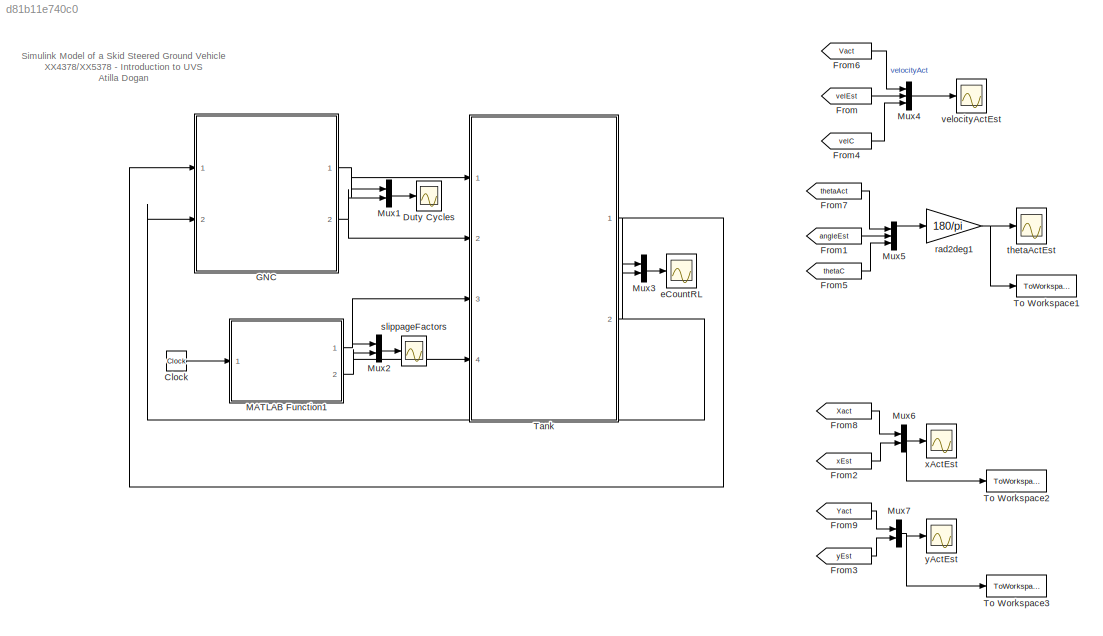
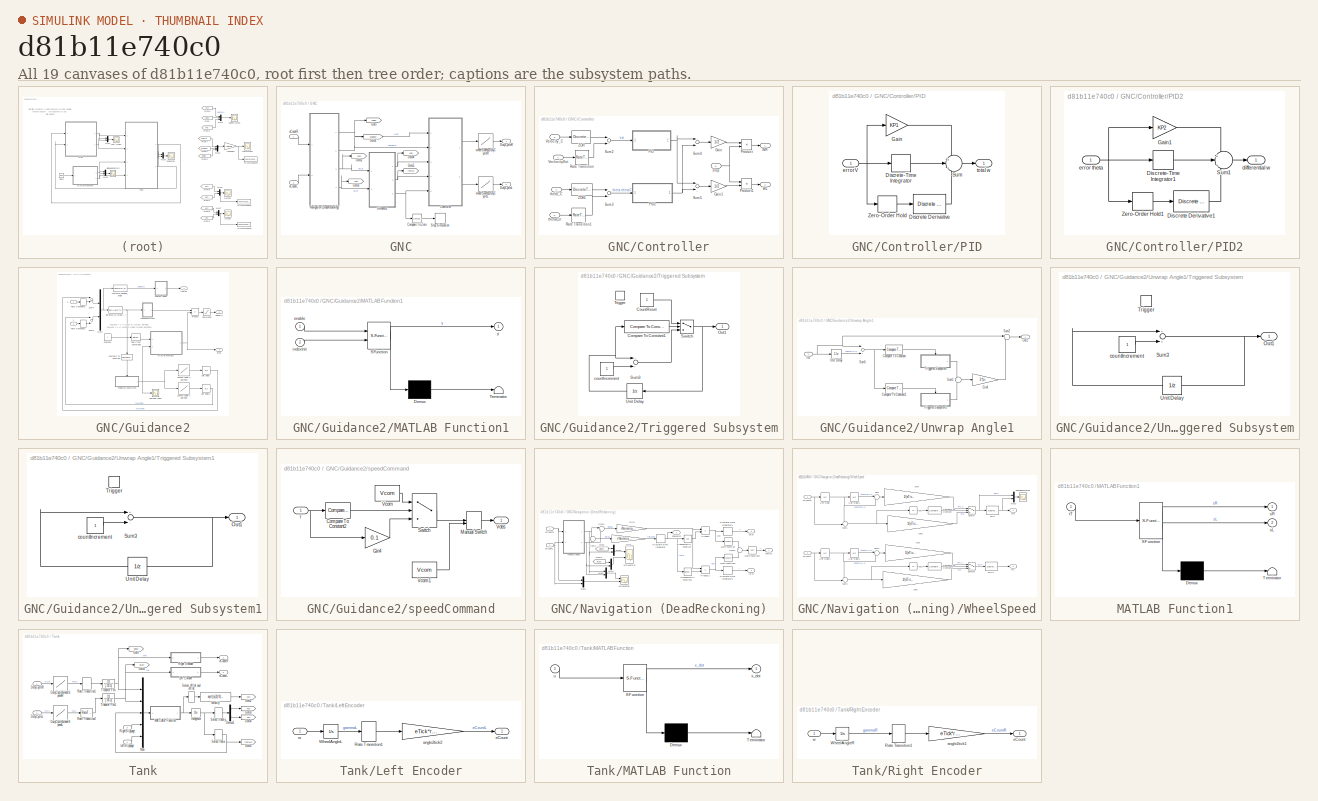
[diagram: thumbnail index - all 19 canvases of the model, root first then tree order]
MODEL slx_d81b11e740c0
KIND model
CONFIG AbsTol = auto
CONFIG EnableMultiTasking = on
CONFIG FixedStep = 0.1
CONFIG InitFcn = parameterVehicle\nparameterGNC\n
CONFIG MaxStep = auto
CONFIG MinStep = auto
CONFIG PreLoadFcn = RTWConfigurationCB('preloadfcn', bdroot);
CONFIG RelTol = 1e-3
CONFIG SampleTimeConstraint = Unconstrained
CONFIG Solver = ode45
CONFIG SolverName = ode45
CONFIG StartTime = 0.0
CONFIG StopFcn = myAnimation(xActEst,yActEst,thetaActEst,X_array,Y_array,rp1,rp2)\nmyStopFcn2sim(xActEst,yActEst,X_array,Y_array,rp1,rp2)\n
CONFIG StopTime = 300
BLOCK [Clock] Clock
BLOCK [Scope] Duty Cycles
  Floating = off
  NumInputPorts = 1
  Ports = [1]
  ScopeSpecificationString = Simulink.scopes.TimeScopeBlockCfg('CurrentConfiguration', extmgr.ConfigurationSet(extmgr.Configuration('Core','General UI',true),extmgr.Configuration('Core','Source UI',true),extmgr.Configuration('Sources','WiredSimulink',true,'DataLoggingVariableName','ScopeData2','DataLoggingSaveFormat','StructureWithTime','DataLoggingDecimation','1','DataLoggingDecimateData',true),extmgr.Configuration('Visuals'...<+1739ch>
BLOCK [From] From
  GotoTag = velEst
  TagVisibility = global
BLOCK [From] From1
  GotoTag = angleEst
  TagVisibility = global
BLOCK [From] From2
  GotoTag = xEst
  TagVisibility = global
BLOCK [From] From3
  GotoTag = yEst
  TagVisibility = global
BLOCK [From] From4
  GotoTag = velC
  TagVisibility = global
BLOCK [From] From5
  GotoTag = thetaC
  TagVisibility = global
BLOCK [From] From6
  GotoTag = Vact
  TagVisibility = global
BLOCK [From] From7
  GotoTag = thetaAct
  TagVisibility = global
BLOCK [From] From8
  GotoTag = Xact
  TagVisibility = global
BLOCK [From] From9
  GotoTag = Yact
  TagVisibility = global
BLOCK [SubSystem] GNC
  Ports = [2, 2]
  RequestExecContextInheritance = off
BLOCK [Reference] GNC/Compare To Zero  REF=simulink/Logic and Bit
Operations/Compare
To Zero
  Ports = [1, 1]
  SourceBlock = simulink/Logic and Bit\nOperations/Compare\nTo Zero
  SourceProductBaseCode = SL
  SourceProductName = Simulink
  SourceType = Compare To Zero
BLOCK [SubSystem] GNC/Controller
  Ports = [5, 2]
  RequestExecContextInheritance = off
BLOCK [Gain] GNC/Controller/Gain
  Gain = 1/2
  OutDataTypeStr = Inherit: Inherit via internal rule
  ParamDataTypeStr = Inherit: Inherit via internal rule
  SaturateOnIntegerOverflow = off
BLOCK [Gain] GNC/Controller/Gain1
  Gain = 1/2
  OutDataTypeStr = Inherit: Inherit via internal rule
  ParamDataTypeStr = Inherit: Inherit via internal rule
  SaturateOnIntegerOverflow = off
BLOCK [SubSystem] GNC/Controller/PID
  Ports = [1, 1]
  RequestExecContextInheritance = off
BLOCK [Reference] GNC/Controller/PID/Discrete Derivative  REF=simulink/Discrete/Discrete Derivative
  Ports = [1, 1]
  SourceBlock = simulink/Discrete/Discrete Derivative
  SourceProductBaseCode = SL
  SourceProductName = Simulink
  SourceType = Discrete Derivative
BLOCK [DiscreteIntegrator] GNC/Controller/PID/Discrete-Time Integrator
  ICPrevOutput = DiscIntNeverNeededParam
  ICPrevScaledInput = DiscIntNeverNeededParam
  Ports = [1, 1]
  SampleTime = Tsample
  gainval = KI1
BLOCK [Gain] GNC/Controller/PID/Gain
  Gain = KP1
  OutDataTypeStr = Inherit: Inherit via internal rule
  ParamDataTypeStr = Inherit: Inherit via internal rule
  SampleTime = Tsample
  SaturateOnIntegerOverflow = off
BLOCK [Sum] GNC/Controller/PID/Sum
  IconShape = round
  InputSameDT = off
  Inputs = +|+|+
  OutDataTypeStr = Inherit: Inherit via internal rule
  Ports = [3, 1]
  SaturateOnIntegerOverflow = off
BLOCK [ZeroOrderHold] GNC/Controller/PID/Zero-Order Hold
  SampleTime = Tsample
BLOCK [Inport] GNC/Controller/PID/errorV
  IconDisplay = Port number
BLOCK [Outport] GNC/Controller/PID/total w
  IconDisplay = Port number
BLOCK [SubSystem] GNC/Controller/PID2
  Ports = [1, 1]
  RequestExecContextInheritance = off
BLOCK [Reference] GNC/Controller/PID2/Discrete Derivative1  REF=simulink/Discrete/Discrete Derivative
  Ports = [1, 1]
  SourceBlock = simulink/Discrete/Discrete Derivative
  SourceProductBaseCode = SL
  SourceProductName = Simulink
  SourceType = Discrete Derivative
BLOCK [DiscreteIntegrator] GNC/Controller/PID2/Discrete-Time Integrator1
  ICPrevOutput = DiscIntNeverNeededParam
  ICPrevScaledInput = DiscIntNeverNeededParam
  Ports = [1, 1]
  SampleTime = Tsample
  gainval = KI2
BLOCK [Gain] GNC/Controller/PID2/Gain1
  Gain = KP2
  OutDataTypeStr = Inherit: Inherit via internal rule
  ParamDataTypeStr = Inherit: Inherit via internal rule
  SampleTime = Tsample
  SaturateOnIntegerOverflow = off
BLOCK [Sum] GNC/Controller/PID2/Sum1
  IconShape = round
  InputSameDT = off
  Inputs = +|+|+
  OutDataTypeStr = Inherit: Inherit via internal rule
  Ports = [3, 1]
  SaturateOnIntegerOverflow = off
BLOCK [ZeroOrderHold] GNC/Controller/PID2/Zero-Order Hold1
  SampleTime = Tsample
BLOCK [Outport] GNC/Controller/PID2/differential w
  IconDisplay = Port number
BLOCK [Inport] GNC/Controller/PID2/error theta
  IconDisplay = Port number
BLOCK [Product] GNC/Controller/Product
  InputSameDT = off
  OutDataTypeStr = Inherit: Inherit via internal rule
  Ports = [2, 1]
  SaturateOnIntegerOverflow = off
BLOCK [Product] GNC/Controller/Product1
  InputSameDT = off
  OutDataTypeStr = Inherit: Inherit via internal rule
  Ports = [2, 1]
  SaturateOnIntegerOverflow = off
BLOCK [RateTransition] GNC/Controller/Rate Transition
  Deterministic = off
BLOCK [RateTransition] GNC/Controller/Rate Transition1
  Deterministic = off
BLOCK [Sum] GNC/Controller/Sum2
  InputSameDT = off
  Inputs = |+|-|
  OutDataTypeStr = Inherit: Inherit via internal rule
  Ports = [2, 1]
  SampleTime = Tsample
  SaturateOnIntegerOverflow = off
BLOCK [Sum] GNC/Controller/Sum3
  InputSameDT = off
  Inputs = |+|-|
  OutDataTypeStr = Inherit: Inherit via internal rule
  Ports = [2, 1]
  SampleTime = Tsample
  SaturateOnIntegerOverflow = off
BLOCK [Sum] GNC/Controller/Sum4
  InputSameDT = off
  Inputs = +|-
  OutDataTypeStr = Inherit: Inherit via internal rule
  Ports = [2, 1]
  SaturateOnIntegerOverflow = off
BLOCK [Sum] GNC/Controller/Sum5
  InputSameDT = off
  Inputs = +|+
  OutDataTypeStr = Inherit: Inherit via internal rule
  Ports = [2, 1]
  SaturateOnIntegerOverflow = off
BLOCK [Inport] GNC/Controller/VeclocityEst
  IconDisplay = Port number
BLOCK [Inport] GNC/Controller/Velocity_C
  IconDisplay = Port number
  Port = 3
BLOCK [Outport] GNC/Controller/WL
  IconDisplay = Port number
  Port = 2
BLOCK [Outport] GNC/Controller/WR
  IconDisplay = Port number
BLOCK [DiscreteTransferFcn] GNC/Controller/ZOH
  Denominator = [1  -exp(-Tsample/Tau1)]
  InputPortMap = u0
  Numerator = [1-exp(-Tsample/Tau1)]
  Ports = [1, 1]
  SampleTime = Tsample
BLOCK [DiscreteTransferFcn] GNC/Controller/ZOH1
  Denominator = [1  -exp(-Tsample/Tau2)]
  InputPortMap = u0
  Numerator = [1-exp(-Tsample/Tau2)]
  Ports = [1, 1]
  SampleTime = Tsample
BLOCK [Inport] GNC/Controller/stop
  IconDisplay = Port number
  Port = 5
BLOCK [Inport] GNC/Controller/thetaEst
  IconDisplay = Port number
  Port = 2
BLOCK [Inport] GNC/Controller/theta_C
  IconDisplay = Port number
  Port = 4
BLOCK [Outport] GNC/DutyCycleL
  IconDisplay = Port number
  Port = 2
BLOCK [Outport] GNC/DutyCycleR
  IconDisplay = Port number
BLOCK [Goto] GNC/Goto
  GotoTag = velEst
  TagVisibility = global
BLOCK [Goto] GNC/Goto1
  GotoTag = angleEst
  TagVisibility = global
BLOCK [Goto] GNC/Goto2
  GotoTag = xEst
  TagVisibility = global
BLOCK [Goto] GNC/Goto3
  GotoTag = yEst
  TagVisibility = global
BLOCK [Goto] GNC/Goto4
  GotoTag = velC
  TagVisibility = global
BLOCK [Goto] GNC/Goto5
  GotoTag = thetaC
  TagVisibility = global
BLOCK [SubSystem] GNC/Guidance2
  Ports = [2, 3]
  RequestExecContextInheritance = off
BLOCK [Reference] GNC/Guidance2/Compare To Constant  REF=simulink/Logic and Bit
Operations/Compare
To Constant
  Ports = [1, 1]
  SourceBlock = simulink/Logic and Bit\nOperations/Compare\nTo Constant
  SourceProductBaseCode = SL
  SourceProductName = Simulink
  SourceType = Compare To Constant
BLOCK [DataTypeConversion] GNC/Guidance2/Data Type Conversion
  OutDataTypeStr = boolean
  RndMeth = Floor
  SaturateOnIntegerOverflow = off
BLOCK [Lookup] GNC/Guidance2/Lookup Table X wayPoint
  InputValues = [1:length(X_array)]
  LookUpMeth = Interpolation-Use End Values
  OutDataTypeStr = double
  SaturateOnIntegerOverflow = off
  Table = X_array
BLOCK [Lookup] GNC/Guidance2/Lookup Table Y wayPoint
  InputValues = [1:length(Y_array)]
  LookUpMeth = Interpolation-Use End Values
  OutDataTypeStr = double
  SaturateOnIntegerOverflow = off
  Table = Y_array
BLOCK [SubSystem] GNC/Guidance2/MATLAB Function1
  ErrorFcn = Stateflow.Translate.translate
  PermitHierarchicalResolution = ExplicitOnly
  Ports = [2, 1]
  RequestExecContextInheritance = off
  SFBlockType = MATLAB Function
  TreatAsAtomicUnit = on
BLOCK [Demux] GNC/Guidance2/MATLAB Function1/ Demux 
  Outputs = 1
  Ports = [1, 1]
BLOCK [S-Function] GNC/Guidance2/MATLAB Function1/ SFunction 
  EnableBusSupport = on
  FunctionName = sf_sfun
  Parameters = X_array
  PortCounts = [2 2]
  Ports = [2, 2]
  SFcnIsStateOwnerBlock = off
  SFunctionDeploymentMode = off
  Tag = Stateflow S-Function hwGNC_1001569883 4
BLOCK [Terminator] GNC/Guidance2/MATLAB Function1/ Terminator 
BLOCK [Inport] GNC/Guidance2/MATLAB Function1/enable
  IconDisplay = Port number
BLOCK [Inport] GNC/Guidance2/MATLAB Function1/indexInit
  IconDisplay = Port number
  Port = 2
BLOCK [Outport] GNC/Guidance2/MATLAB Function1/y
  IconDisplay = Port number
BLOCK [Mux] GNC/Guidance2/Mux4
  DisplayOption = bar
  Inputs = 2
  Ports = [2, 1]
BLOCK [Product] GNC/Guidance2/Product
  InputSameDT = off
  OutDataTypeStr = Inherit: Inherit via internal rule
  Ports = [2, 1]
  SaturateOnIntegerOverflow = off
BLOCK [RateTransition] GNC/Guidance2/Rate Transition1
BLOCK [RateTransition] GNC/Guidance2/Rate Transition2
BLOCK [Saturate] GNC/Guidance2/Saturation
  InputPortMap = u0
  LowerLimit = 0
  Ports = [1, 1]
  SampleTime = Tsample
  UpperLimit = Vcom
BLOCK [Outport] GNC/Guidance2/Stop
  IconDisplay = Port number
  Port = 3
BLOCK [Sum] GNC/Guidance2/Sum4
  InputSameDT = off
  Inputs = |+|-|
  OutDataTypeStr = Inherit: Inherit via internal rule
  Ports = [2, 1]
  SaturateOnIntegerOverflow = off
BLOCK [Sum] GNC/Guidance2/Sum5
  InputSameDT = off
  Inputs = |+|-|
  OutDataTypeStr = Inherit: Inherit via internal rule
  Ports = [2, 1]
  SaturateOnIntegerOverflow = off
BLOCK [SubSystem] GNC/Guidance2/Triggered Subsystem
  Ports = [0, 1, 0, 1]
  RequestExecContextInheritance = off
  TreatAsAtomicUnit = on
BLOCK [Reference] GNC/Guidance2/Triggered Subsystem/Compare To Constant1  REF=simulink/Logic and Bit
Operations/Compare
To Constant
  Ports = [1, 1]
  SourceBlock = simulink/Logic and Bit\nOperations/Compare\nTo Constant
  SourceProductBaseCode = SL
  SourceProductName = Simulink
  SourceType = Compare To Constant
BLOCK [Constant] GNC/Guidance2/Triggered Subsystem/CountReset
  OutDataTypeStr = uint32
  SampleTime = -1
BLOCK [Outport] GNC/Guidance2/Triggered Subsystem/Out1
  IconDisplay = Port number
  InitialOutput = 1
  OutDataTypeStr = uint32
BLOCK [Sum] GNC/Guidance2/Triggered Subsystem/Sum3
  InputSameDT = off
  OutDataTypeStr = uint32
  Ports = [2, 1]
  SaturateOnIntegerOverflow = off
BLOCK [Switch] GNC/Guidance2/Triggered Subsystem/Switch
  InputSameDT = off
  SaturateOnIntegerOverflow = off
  Threshold = 0.5
BLOCK [TriggerPort] GNC/Guidance2/Triggered Subsystem/Trigger
  Ports = []
  StatesWhenEnabling = held
  VariantControl = Variant
BLOCK [UnitDelay] GNC/Guidance2/Triggered Subsystem/Unit Delay
  InitialCondition = 1
  SampleTime = -1
BLOCK [Constant] GNC/Guidance2/Triggered Subsystem/countIncrement
  OutDataTypeStr = uint32
  SampleTime = -1
BLOCK [UnitDelay] GNC/Guidance2/Unit Delay
  SampleTime = Tsample
BLOCK [UnitDelay] GNC/Guidance2/Unit Delay1
  SampleTime = Tsample
BLOCK [SubSystem] GNC/Guidance2/Unwrap Angle1
  Ports = [1, 1]
  RequestExecContextInheritance = off
BLOCK [Reference] GNC/Guidance2/Unwrap Angle1/Compare To Constant  REF=simulink/Logic and Bit
Operations/Compare
To Constant
  Ports = [1, 1]
  SourceBlock = simulink/Logic and Bit\nOperations/Compare\nTo Constant
  SourceProductBaseCode = SL
  SourceProductName = Simulink
  SourceType = Compare To Constant
BLOCK [Reference] GNC/Guidance2/Unwrap Angle1/Compare To Constant1  REF=simulink/Logic and Bit
Operations/Compare
To Constant
  Ports = [1, 1]
  SourceBlock = simulink/Logic and Bit\nOperations/Compare\nTo Constant
  SourceProductBaseCode = SL
  SourceProductName = Simulink
  SourceType = Compare To Constant
BLOCK [Gain] GNC/Guidance2/Unwrap Angle1/Gin4
  Gain = 2*pi
  OutDataTypeStr = double
  ParamDataTypeStr = Inherit: Inherit via internal rule
  SampleTime = Tsample
  SaturateOnIntegerOverflow = off
BLOCK [Inport] GNC/Guidance2/Unwrap Angle1/In1
  IconDisplay = Port number
BLOCK [Outport] GNC/Guidance2/Unwrap Angle1/Out1
  IconDisplay = Port number
BLOCK [Sum] GNC/Guidance2/Unwrap Angle1/Sum1
  IconShape = round
  InputSameDT = off
  Inputs = +|+
  OutDataTypeStr = Inherit: Inherit via internal rule
  Ports = [2, 1]
  SaturateOnIntegerOverflow = off
BLOCK [Sum] GNC/Guidance2/Unwrap Angle1/Sum2
  IconShape = round
  InputSameDT = off
  Inputs = |+-
  OutDataTypeStr = Inherit: Inherit via internal rule
  Ports = [2, 1]
  SaturateOnIntegerOverflow = off
BLOCK [Sum] GNC/Guidance2/Unwrap Angle1/Sum5
  InputSameDT = off
  Inputs = |+|-|
  OutDataTypeStr = Inherit: Inherit via internal rule
  Ports = [2, 1]
  SaturateOnIntegerOverflow = off
BLOCK [SubSystem] GNC/Guidance2/Unwrap Angle1/Triggered Subsystem
  Ports = [0, 1, 0, 1]
  RequestExecContextInheritance = off
  TreatAsAtomicUnit = on
BLOCK [Outport] GNC/Guidance2/Unwrap Angle1/Triggered Subsystem/Out1
  IconDisplay = Port number
  InitialOutput = 0
  OutDataTypeStr = int32
BLOCK [Sum] GNC/Guidance2/Unwrap Angle1/Triggered Subsystem/Sum3
  InputSameDT = off
  OutDataTypeStr = int32
  Ports = [2, 1]
  SaturateOnIntegerOverflow = off
BLOCK [TriggerPort] GNC/Guidance2/Unwrap Angle1/Triggered Subsystem/Trigger
  Ports = []
  StatesWhenEnabling = held
  VariantControl = Variant
BLOCK [UnitDelay] GNC/Guidance2/Unwrap Angle1/Triggered Subsystem/Unit Delay
  SampleTime = -1
BLOCK [Constant] GNC/Guidance2/Unwrap Angle1/Triggered Subsystem/countIncrement
  OutDataTypeStr = int32
  SampleTime = -1
BLOCK [SubSystem] GNC/Guidance2/Unwrap Angle1/Triggered Subsystem1
  Ports = [0, 1, 0, 1]
  RequestExecContextInheritance = off
  TreatAsAtomicUnit = on
BLOCK [Outport] GNC/Guidance2/Unwrap Angle1/Triggered Subsystem1/Out1
  IconDisplay = Port number
  InitialOutput = 0
  OutDataTypeStr = int32
BLOCK [Sum] GNC/Guidance2/Unwrap Angle1/Triggered Subsystem1/Sum3
  InputSameDT = off
  Inputs = +-
  OutDataTypeStr = int32
  Ports = [2, 1]
  SaturateOnIntegerOverflow = off
BLOCK [TriggerPort] GNC/Guidance2/Unwrap Angle1/Triggered Subsystem1/Trigger
  Ports = []
  StatesWhenEnabling = held
  VariantControl = Variant
BLOCK [UnitDelay] GNC/Guidance2/Unwrap Angle1/Triggered Subsystem1/Unit Delay
  SampleTime = -1
BLOCK [Constant] GNC/Guidance2/Unwrap Angle1/Triggered Subsystem1/countIncrement
  OutDataTypeStr = int32
  SampleTime = -1
BLOCK [UnitDelay] GNC/Guidance2/Unwrap Angle1/Unit Delay
  SampleTime = Tsample
BLOCK [Outport] GNC/Guidance2/VelocityC
  IconDisplay = Port number
BLOCK [Inport] GNC/Guidance2/X
  IconDisplay = Port number
BLOCK [Inport] GNC/Guidance2/Y
  IconDisplay = Port number
  Port = 2
BLOCK [Fcn] GNC/Guidance2/compute_heading_angle
  Expr = atan2(u[2],u[1])
  SampleTime = Tsample
BLOCK [Fcn] GNC/Guidance2/distance_to_target, r
  Expr = sqrt((u[2]^2)+(u[1]^2))
  SampleTime = Tsample
BLOCK [Constant] GNC/Guidance2/oneLoop
  OutDataTypeStr = uint32
  SampleTime = Tsample
BLOCK [SubSystem] GNC/Guidance2/speedCommand
  Ports = [1, 1]
  RequestExecContextInheritance = off
BLOCK [Reference] GNC/Guidance2/speedCommand/Compare To Constant2  REF=simulink/Logic and Bit
Operations/Compare
To Constant
  Ports = [1, 1]
  SourceBlock = simulink/Logic and Bit\nOperations/Compare\nTo Constant
  SourceProductBaseCode = SL
  SourceProductName = Simulink
  SourceType = Compare To Constant
BLOCK [Gain] GNC/Guidance2/speedCommand/Gin4
  Gain = 0.1
  OutDataTypeStr = Inherit: Inherit via internal rule
  ParamDataTypeStr = Inherit: Inherit via internal rule
  SampleTime = Tsample
  SaturateOnIntegerOverflow = off
BLOCK [ManualSwitch] GNC/Guidance2/speedCommand/Manual Switch
  CurrentSetting = 0
BLOCK [Switch] GNC/Guidance2/speedCommand/Switch
  Criteria = u2 > Threshold
  InputSameDT = off
  SaturateOnIntegerOverflow = off
BLOCK [Constant] GNC/Guidance2/speedCommand/Vcom
  SampleTime = Tsample
  Value = Vcom
BLOCK [Constant] GNC/Guidance2/speedCommand/Vcom1
  SampleTime = Tsample
  Value = Vcom
BLOCK [Outport] GNC/Guidance2/speedCommand/Vdes
  IconDisplay = Port number
BLOCK [Inport] GNC/Guidance2/speedCommand/r
  IconDisplay = Port number
BLOCK [Outport] GNC/Guidance2/thetaC
  IconDisplay = Port number
  Port = 2
BLOCK [Scope] GNC/Guidance2/wayPointIndex
  Floating = off
  NumInputPorts = 1
  Ports = [1]
  ScopeSpecificationString = C++SS(StrPVP('Location','[472, 227, 1271, 789]'),StrPVP('Open','off'),MxPVP('AxesTitles',53,'struct(''axes1'',''%<SignalLabel>'')'),MxPVP('ScopeGraphics',56,'struct(''FigureColor'',''[0.5 0.5 0.5]'',''AxesColor'',''[0 0 0]'',''AxesTickColor'',''[1 1 1]'',''LineColors'',''[1 1 0;1 0 1;0 1 1;1 0 0;0 1 0;0 0 1]'',''LineStyles'',''-|-|-|-|-|-'',''LineWidths'',''[0.5 0.5 0.5 0.5 0.5 0.5]'',''MarkerStyl...<+325ch>
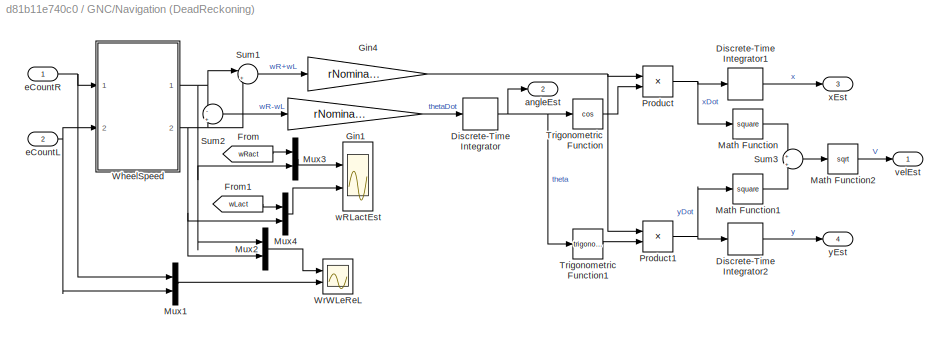
BLOCK [SubSystem] GNC/Navigation (DeadReckoning)
  Ports = [2, 4]
  RequestExecContextInheritance = off
BLOCK [DiscreteIntegrator] GNC/Navigation (DeadReckoning)/Discrete-Time Integrator
  ICPrevOutput = DiscIntNeverNeededParam
  ICPrevScaledInput = DiscIntNeverNeededParam
  Ports = [1, 1]
  SampleTime = TsampleEncoderDR
BLOCK [DiscreteIntegrator] GNC/Navigation (DeadReckoning)/Discrete-Time Integrator1
  ICPrevOutput = DiscIntNeverNeededParam
  ICPrevScaledInput = DiscIntNeverNeededParam
  Ports = [1, 1]
  SampleTime = TsampleEncoderDR
BLOCK [DiscreteIntegrator] GNC/Navigation (DeadReckoning)/Discrete-Time Integrator2
  ICPrevOutput = DiscIntNeverNeededParam
  ICPrevScaledInput = DiscIntNeverNeededParam
  Ports = [1, 1]
  SampleTime = TsampleEncoderDR
BLOCK [From] GNC/Navigation (DeadReckoning)/From
  GotoTag = wRact
  TagVisibility = global
BLOCK [From] GNC/Navigation (DeadReckoning)/From1
  GotoTag = wLact
  TagVisibility = global
BLOCK [Gain] GNC/Navigation (DeadReckoning)/Gin1
  Gain = rNominalDR/bDR
  OutDataTypeStr = double
  ParamDataTypeStr = Inherit: Inherit via internal rule
  SaturateOnIntegerOverflow = off
BLOCK [Gain] GNC/Navigation (DeadReckoning)/Gin4
  Gain = rNominalDR/2
  OutDataTypeStr = double
  ParamDataTypeStr = Inherit: Inherit via internal rule
  SaturateOnIntegerOverflow = off
BLOCK [Math] GNC/Navigation (DeadReckoning)/Math Function
  Operator = square
  Ports = [1, 1]
BLOCK [Math] GNC/Navigation (DeadReckoning)/Math Function1
  Operator = square
  Ports = [1, 1]
BLOCK [Math] GNC/Navigation (DeadReckoning)/Math Function2
  Operator = sqrt
  OutputSignalType = real
  Ports = [1, 1]
BLOCK [Mux] GNC/Navigation (DeadReckoning)/Mux1
  DisplayOption = bar
  Inputs = 2
  Ports = [2, 1]
BLOCK [Mux] GNC/Navigation (DeadReckoning)/Mux2
  DisplayOption = bar
  Inputs = 2
  Ports = [2, 1]
BLOCK [Mux] GNC/Navigation (DeadReckoning)/Mux3
  DisplayOption = bar
  Inputs = 2
  Ports = [2, 1]
BLOCK [Mux] GNC/Navigation (DeadReckoning)/Mux4
  DisplayOption = bar
  Inputs = 2
  Ports = [2, 1]
BLOCK [Product] GNC/Navigation (DeadReckoning)/Product
  InputSameDT = off
  OutDataTypeStr = Inherit: Inherit via internal rule
  Ports = [2, 1]
  SaturateOnIntegerOverflow = off
BLOCK [Product] GNC/Navigation (DeadReckoning)/Product1
  InputSameDT = off
  OutDataTypeStr = Inherit: Inherit via internal rule
  Ports = [2, 1]
  SaturateOnIntegerOverflow = off
BLOCK [Sum] GNC/Navigation (DeadReckoning)/Sum1
  IconShape = round
  InputSameDT = off
  Inputs = |++
  OutDataTypeStr = Inherit: Inherit via internal rule
  Ports = [2, 1]
  SaturateOnIntegerOverflow = off
BLOCK [Sum] GNC/Navigation (DeadReckoning)/Sum2
  IconShape = round
  InputSameDT = off
  Inputs = -|+
  OutDataTypeStr = Inherit: Inherit via internal rule
  Ports = [2, 1]
  SaturateOnIntegerOverflow = off
BLOCK [Sum] GNC/Navigation (DeadReckoning)/Sum3
  IconShape = round
  InputSameDT = off
  Inputs = +|+
  OutDataTypeStr = Inherit: Inherit via internal rule
  Ports = [2, 1]
  SaturateOnIntegerOverflow = off
BLOCK [Trigonometry] GNC/Navigation (DeadReckoning)/Trigonometric Function
  Operator = cos
  OutputSignalType = real
  Ports = [1, 1]
BLOCK [Trigonometry] GNC/Navigation (DeadReckoning)/Trigonometric Function1
  OutputSignalType = real
  Ports = [1, 1]
BLOCK [SubSystem] GNC/Navigation (DeadReckoning)/WheelSpeed
  Ports = [2, 2]
  RequestExecContextInheritance = off
BLOCK [Abs] GNC/Navigation (DeadReckoning)/WheelSpeed/Abs
  SaturateOnIntegerOverflow = off
BLOCK [Abs] GNC/Navigation (DeadReckoning)/WheelSpeed/Abs1
  SaturateOnIntegerOverflow = off
BLOCK [Reference] GNC/Navigation (DeadReckoning)/WheelSpeed/Compare To Constant  REF=simulink/Logic and Bit
Operations/Compare
To Constant
  Ports = [1, 1]
  SourceBlock = simulink/Logic and Bit\nOperations/Compare\nTo Constant
  SourceProductBaseCode = SL
  SourceProductName = Simulink
  SourceType = Compare To Constant
BLOCK [Reference] GNC/Navigation (DeadReckoning)/WheelSpeed/Compare To Constant1  REF=simulink/Logic and Bit
Operations/Compare
To Constant
  Ports = [1, 1]
  SourceBlock = simulink/Logic and Bit\nOperations/Compare\nTo Constant
  SourceProductBaseCode = SL
  SourceProductName = Simulink
  SourceType = Compare To Constant
BLOCK [Gain] GNC/Navigation (DeadReckoning)/WheelSpeed/Gin1
  Gain = 1/(eTickDR*rNominalDR*TsampleEncoderDR)
  OutDataTypeStr = double
  ParamDataTypeStr = Inherit: Inherit via internal rule
  SampleTime = TsampleEncoderDR
  SaturateOnIntegerOverflow = off
BLOCK [Gain] GNC/Navigation (DeadReckoning)/WheelSpeed/Gin2
  Gain = 1/(eTickDR*rNominalDR*TsampleEncoderDR)
  OutDataTypeStr = double
  ParamDataTypeStr = Inherit: Inherit via internal rule
  SampleTime = TsampleEncoderDR
  SaturateOnIntegerOverflow = off
BLOCK [Gain] GNC/Navigation (DeadReckoning)/WheelSpeed/Gin3
  Gain = 1/(eTickDR*rNominalDR*TsampleEncoderDR)
  OutDataTypeStr = double
  ParamDataTypeStr = Inherit: Inherit via internal rule
  SampleTime = TsampleEncoderDR
  SaturateOnIntegerOverflow = off
BLOCK [Gain] GNC/Navigation (DeadReckoning)/WheelSpeed/Gin4
  Gain = 1/(eTickDR*rNominalDR*TsampleEncoderDR)
  OutDataTypeStr = double
  ParamDataTypeStr = Inherit: Inherit via internal rule
  SampleTime = TsampleEncoderDR
  SaturateOnIntegerOverflow = off
BLOCK [Mux] GNC/Navigation (DeadReckoning)/WheelSpeed/Mux2
  DisplayOption = bar
  Inputs = 2
  Ports = [2, 1]
BLOCK [Sum] GNC/Navigation (DeadReckoning)/WheelSpeed/Sum
  IconShape = round
  InputSameDT = off
  Inputs = |-+
  OutDataTypeStr = Inherit: Inherit via internal rule
  Ports = [2, 1]
  SaturateOnIntegerOverflow = off
BLOCK [Sum] GNC/Navigation (DeadReckoning)/WheelSpeed/Sum1
  IconShape = round
  InputSameDT = off
  Inputs = -+|
  OutDataTypeStr = Inherit: Inherit via internal rule
  Ports = [2, 1]
  SaturateOnIntegerOverflow = off
BLOCK [Sum] GNC/Navigation (DeadReckoning)/WheelSpeed/Sum2
  IconShape = round
  InputSameDT = off
  Inputs = |-+
  OutDataTypeStr = Inherit: Inherit via internal rule
  Ports = [2, 1]
  SaturateOnIntegerOverflow = off
BLOCK [Sum] GNC/Navigation (DeadReckoning)/WheelSpeed/Sum3
  IconShape = round
  InputSameDT = off
  Inputs = -+|
  OutDataTypeStr = Inherit: Inherit via internal rule
  Ports = [2, 1]
  SaturateOnIntegerOverflow = off
BLOCK [Switch] GNC/Navigation (DeadReckoning)/WheelSpeed/Switch
  InputSameDT = off
  SaturateOnIntegerOverflow = off
  Threshold = 0.5
BLOCK [Switch] GNC/Navigation (DeadReckoning)/WheelSpeed/Switch1
  InputSameDT = off
  SaturateOnIntegerOverflow = off
  Threshold = 0.5
BLOCK [UnitDelay] GNC/Navigation (DeadReckoning)/WheelSpeed/Unit Delay
  SampleTime = TsampleEncoderDR
BLOCK [UnitDelay] GNC/Navigation (DeadReckoning)/WheelSpeed/Unit Delay1
  SampleTime = TsampleEncoderDR
BLOCK [UnitDelay] GNC/Navigation (DeadReckoning)/WheelSpeed/Unit Delay2
  SampleTime = TsampleEncoderDR
BLOCK [UnitDelay] GNC/Navigation (DeadReckoning)/WheelSpeed/Unit Delay3
  SampleTime = TsampleEncoderDR
BLOCK [DiscreteTransferFcn] GNC/Navigation (DeadReckoning)/WheelSpeed/ZOH
  Denominator = [1  -exp(-TsampleEncoderDR/TauEncoderDR)]
  InputPortMap = u0
  Numerator = [1-exp(-TsampleEncoderDR/TauEncoderDR)]
  Ports = [1, 1]
  SampleTime = TsampleEncoderDR
BLOCK [DiscreteTransferFcn] GNC/Navigation (DeadReckoning)/WheelSpeed/ZOH1
  Denominator = [1  -exp(-TsampleEncoderDR/TauEncoderDR)]
  InputPortMap = u0
  Numerator = [1-exp(-TsampleEncoderDR/TauEncoderDR)]
  Ports = [1, 1]
  SampleTime = TsampleEncoderDR
BLOCK [Inport] GNC/Navigation (DeadReckoning)/WheelSpeed/eCountL
  IconDisplay = Port number
  Port = 2
BLOCK [Inport] GNC/Navigation (DeadReckoning)/WheelSpeed/eCountR
  IconDisplay = Port number
BLOCK [Scope] GNC/Navigation (DeadReckoning)/WheelSpeed/speedEstimated
  Floating = off
  NumInputPorts = 1
  Ports = [1]
  ScopeSpecificationString = C++SS(StrPVP('Location','[136, 485, 922, 727]'),StrPVP('Open','off'),StrPVP('ZoomMode','xonly'),MxPVP('AxesTitles',53,'struct(''axes1'',''%<SignalLabel>'')'),MxPVP('ScopeGraphics',56,'struct(''FigureColor'',''[0.5 0.5 0.5]'',''AxesColor'',''[0 0 0]'',''AxesTickColor'',''[1 1 1]'',''LineColors'',''[1 1 0;1 0 1;0 1 1;1 0 0;0 1 0;0 0 1]'',''LineStyles'',''-|-|-|-|-|-'',''LineWidths'',''[0.5 0.5 0.5 0...<+337ch>
BLOCK [Outport] GNC/Navigation (DeadReckoning)/WheelSpeed/wL
  IconDisplay = Port number
  Port = 2
BLOCK [Outport] GNC/Navigation (DeadReckoning)/WheelSpeed/wR
  IconDisplay = Port number
BLOCK [Scope] GNC/Navigation (DeadReckoning)/WrWLeReL
  Floating = off
  NumInputPorts = 2
  Ports = [2]
  ScopeSpecificationString = C++SS(StrPVP('Location','[423, 315, 1055, 679]'),StrPVP('Open','off'),MxPVP('AxesTitles',53,'struct(''axes1'',''%<SignalLabel>'',''axes2'',''%<SignalLabel>'')'),MxPVP('ScopeGraphics',56,'struct(''FigureColor'',''[0.5 0.5 0.5]'',''AxesColor'',''[0 0 0]'',''AxesTickColor'',''[1 1 1]'',''LineColors'',''[1 1 0;1 0 1;0 1 1;1 0 0;0 1 0;0 0 1]'',''LineStyles'',''-|-|-|-|-|-'',''LineWidths'',''[0.5 0.5 0....<+357ch>
BLOCK [Outport] GNC/Navigation (DeadReckoning)/angleEst
  IconDisplay = Port number
  Port = 2
BLOCK [Inport] GNC/Navigation (DeadReckoning)/eCountL
  IconDisplay = Port number
  Port = 2
BLOCK [Inport] GNC/Navigation (DeadReckoning)/eCountR
  IconDisplay = Port number
BLOCK [Outport] GNC/Navigation (DeadReckoning)/velEst
  IconDisplay = Port number
BLOCK [Scope] GNC/Navigation (DeadReckoning)/wRLactEst
  Floating = off
  NumInputPorts = 2
  Ports = [2]
  ScopeSpecificationString = C++SS(StrPVP('Location','[473, 543, 1105, 907]'),StrPVP('Open','off'),MxPVP('AxesTitles',53,'struct(''axes1'',''%<SignalLabel>'',''axes2'',''%<SignalLabel>'')'),MxPVP('ScopeGraphics',56,'struct(''FigureColor'',''[0.5 0.5 0.5]'',''AxesColor'',''[0 0 0]'',''AxesTickColor'',''[1 1 1]'',''LineColors'',''[1 1 0;1 0 1;0 1 1;1 0 0;0 1 0;0 0 1]'',''LineStyles'',''-|-|-|-|-|-'',''LineWidths'',''[0.5 0.5 0....<+356ch>
BLOCK [Outport] GNC/Navigation (DeadReckoning)/xEst
  IconDisplay = Port number
  Port = 3
BLOCK [Outport] GNC/Navigation (DeadReckoning)/yEst
  IconDisplay = Port number
  Port = 4
BLOCK [Stop] GNC/Stop Simulation
BLOCK [Inport] GNC/eCountL
  IconDisplay = Port number
  Port = 2
BLOCK [Inport] GNC/eCountR
  IconDisplay = Port number
BLOCK [Lookup] GNC/wheelSpeed2DutyCycleL
  InputValues = wArrayC
  LookUpMeth = Interpolation-Use End Values
  SaturateOnIntegerOverflow = off
  Table = dcArrayC
BLOCK [Lookup] GNC/wheelSpeed2DutyCycleR
  InputValues = wArrayC
  LookUpMeth = Interpolation-Use End Values
  SaturateOnIntegerOverflow = off
  Table = dcArrayC
BLOCK [SubSystem] MATLAB Function1
  ErrorFcn = Stateflow.Translate.translate
  PermitHierarchicalResolution = ExplicitOnly
  Ports = [1, 2]
  RequestExecContextInheritance = off
  SFBlockType = MATLAB Function
  TreatAsAtomicUnit = on
BLOCK [Demux] MATLAB Function1/ Demux 
  Outputs = 1
  Ports = [1, 1]
BLOCK [S-Function] MATLAB Function1/ SFunction 
  EnableBusSupport = on
  FunctionName = sf_sfun
  PortCounts = [1 3]
  Ports = [1, 3]
  SFcnIsStateOwnerBlock = off
  SFunctionDeploymentMode = off
  Tag = Stateflow S-Function hwGNC_1001569883 3
BLOCK [Terminator] MATLAB Function1/ Terminator 
BLOCK [Outport] MATLAB Function1/sL
  IconDisplay = Port number
  Port = 2
BLOCK [Outport] MATLAB Function1/sR
  IconDisplay = Port number
BLOCK [Inport] MATLAB Function1/tT
  IconDisplay = Port number
BLOCK [Mux] Mux1
  DisplayOption = bar
  Inputs = 2
  Ports = [2, 1]
BLOCK [Mux] Mux2
  DisplayOption = bar
  Inputs = 2
  Ports = [2, 1]
BLOCK [Mux] Mux3
  DisplayOption = bar
  Inputs = 2
  Ports = [2, 1]
BLOCK [Mux] Mux4
  DisplayOption = bar
  Inputs = 3
  Ports = [3, 1]
BLOCK [Mux] Mux5
  DisplayOption = bar
  Inputs = 3
  Ports = [3, 1]
BLOCK [Mux] Mux6
  DisplayOption = bar
  Inputs = 2
  Ports = [2, 1]
BLOCK [Mux] Mux7
  DisplayOption = bar
  Inputs = 2
  Ports = [2, 1]
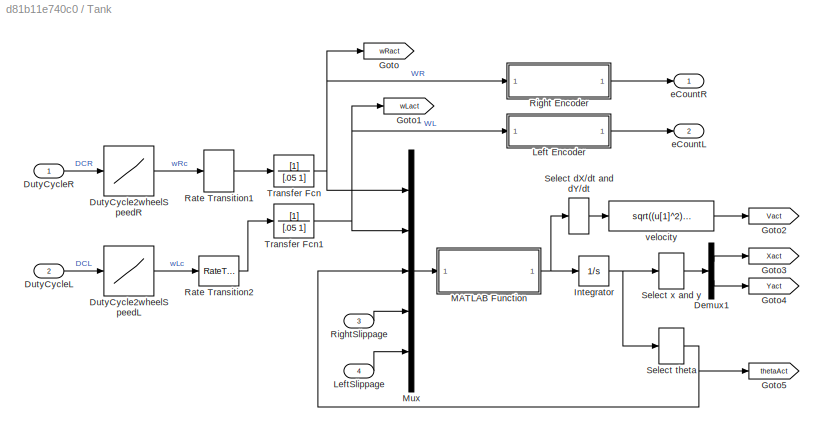
BLOCK [SubSystem] Tank
  Ports = [4, 2]
  RequestExecContextInheritance = off
BLOCK [Demux] Tank/Demux1
  DisplayOption = bar
  Outputs = 2
  Ports = [1, 2]
BLOCK [Lookup] Tank/DutyCycle2wheelSpeedL
  InputValues = dcArray
  LookUpMeth = Interpolation-Use End Values
  SaturateOnIntegerOverflow = off
  Table = wArray
BLOCK [Lookup] Tank/DutyCycle2wheelSpeedR
  InputValues = dcArray
  LookUpMeth = Interpolation-Use End Values
  SaturateOnIntegerOverflow = off
  Table = wArray
BLOCK [Inport] Tank/DutyCycleL
  IconDisplay = Port number
  Port = 2
BLOCK [Inport] Tank/DutyCycleR
  IconDisplay = Port number
BLOCK [Goto] Tank/Goto
  GotoTag = wRact
  TagVisibility = global
BLOCK [Goto] Tank/Goto1
  GotoTag = wLact
  TagVisibility = global
BLOCK [Goto] Tank/Goto2
  GotoTag = Vact
  TagVisibility = global
BLOCK [Goto] Tank/Goto3
  GotoTag = Xact
  TagVisibility = global
BLOCK [Goto] Tank/Goto4
  GotoTag = Yact
  TagVisibility = global
BLOCK [Goto] Tank/Goto5
  GotoTag = thetaAct
  TagVisibility = global
BLOCK [Integrator] Tank/Integrator
  InitialCondition = [xIC; yIC ; thetaIC]
  Ports = [1, 1]
BLOCK [SubSystem] Tank/Left Encoder
  Ports = [1, 1]
  RequestExecContextInheritance = off
BLOCK [RateTransition] Tank/Left Encoder/Rate Transition1
BLOCK [Integrator] Tank/Left Encoder/WheelAngleL
  Ports = [1, 1]
BLOCK [Gain] Tank/Left Encoder/angle2tick2
  Gain = eTick*rNominal
  OutDataTypeStr = int16
  ParamDataTypeStr = Inherit: Inherit via internal rule
  SampleTime = TsampleEncoder
  SaturateOnIntegerOverflow = off
BLOCK [Outport] Tank/Left Encoder/eCount
  IconDisplay = Port number
BLOCK [Inport] Tank/Left Encoder/w
  IconDisplay = Port number
BLOCK [Inport] Tank/LeftSlippage
  IconDisplay = Port number
  Port = 4
BLOCK [SubSystem] Tank/MATLAB Function
  ErrorFcn = Stateflow.Translate.translate
  PermitHierarchicalResolution = ExplicitOnly
  Ports = [1, 1]
  RequestExecContextInheritance = off
  SFBlockType = MATLAB Function
  TreatAsAtomicUnit = on
BLOCK [Demux] Tank/MATLAB Function/ Demux 
  Outputs = 1
  Ports = [1, 1]
BLOCK [S-Function] Tank/MATLAB Function/ SFunction 
  EnableBusSupport = on
  FunctionName = sf_sfun
  Parameters = b,rl,rr
  PortCounts = [1 2]
  Ports = [1, 2]
  SFcnIsStateOwnerBlock = off
  SFunctionDeploymentMode = off
  Tag = Stateflow S-Function hwGNC_1001569883 1
BLOCK [Terminator] Tank/MATLAB Function/ Terminator 
BLOCK [Inport] Tank/MATLAB Function/u
  IconDisplay = Port number
BLOCK [Outport] Tank/MATLAB Function/x_dot
  IconDisplay = Port number
BLOCK [Mux] Tank/Mux
  DisplayOption = bar
  Inputs = 5
  Ports = [5, 1]
BLOCK [RateTransition] Tank/Rate Transition1
BLOCK [RateTransition] Tank/Rate Transition2
BLOCK [SubSystem] Tank/Right Encoder
  Ports = [1, 1]
  RequestExecContextInheritance = off
BLOCK [RateTransition] Tank/Right Encoder/Rate Transition1
BLOCK [Integrator] Tank/Right Encoder/WheelAngleR
  Ports = [1, 1]
BLOCK [Gain] Tank/Right Encoder/angle2tick1
  Gain = eTick*rNominal
  OutDataTypeStr = int16
  ParamDataTypeStr = Inherit: Inherit via internal rule
  SampleTime = TsampleEncoder
  SaturateOnIntegerOverflow = off
BLOCK [Outport] Tank/Right Encoder/eCount
  IconDisplay = Port number
BLOCK [Inport] Tank/Right Encoder/w
  IconDisplay = Port number
BLOCK [Inport] Tank/RightSlippage
  IconDisplay = Port number
  Port = 3
BLOCK [Selector] Tank/Select dX//dt and dY//dt
  IndexOptions = Index vector (dialog)
  Indices = [1 2]
  InputPortWidth = 3
  OutputSizes = 1
  Ports = [1, 1]
BLOCK [Selector] Tank/Select theta
  IndexOptions = Index vector (dialog)
  Indices = 3
  InputPortWidth = 3
  OutputSizes = 1
  Ports = [1, 1]
BLOCK [Selector] Tank/Select x and y
  IndexOptions = Index vector (dialog)
  Indices = [1 2]
  InputPortWidth = 3
  OutputSizes = 1
  Ports = [1, 1]
BLOCK [TransferFcn] Tank/Transfer Fcn
  Denominator = [.05 1]
BLOCK [TransferFcn] Tank/Transfer Fcn1
  Denominator = [.05 1]
BLOCK [Outport] Tank/eCountL
  IconDisplay = Port number
  Port = 2
BLOCK [Outport] Tank/eCountR
  IconDisplay = Port number
BLOCK [Fcn] Tank/velocity
  Expr = sqrt((u[1]^2)+(u[2]^2))
BLOCK [ToWorkspace] To Workspace1
  FixptAsFi = on
  MaxDataPoints = inf
  Ports = [1]
  SampleTime = -1
  Save2DSignal = 3-D array (concatenate along third dimension)
  SaveFormat = Structure With Time
  VariableName = thetaActEst
BLOCK [ToWorkspace] To Workspace2
  FixptAsFi = on
  MaxDataPoints = inf
  Ports = [1]
  SampleTime = -1
  Save2DSignal = 3-D array (concatenate along third dimension)
  SaveFormat = Structure With Time
  VariableName = xActEst
BLOCK [ToWorkspace] To Workspace3
  FixptAsFi = on
  MaxDataPoints = inf
  Ports = [1]
  SampleTime = -1
  Save2DSignal = 3-D array (concatenate along third dimension)
  SaveFormat = Structure With Time
  VariableName = yActEst
BLOCK [Scope] eCountRL
  Floating = off
  NumInputPorts = 1
  Ports = [1]
  ScopeSpecificationString = C++SS(StrPVP('Location','[319, 164, 1179, 410]'),StrPVP('Open','off'),MxPVP('AxesTitles',53,'struct(''axes1'',''%<SignalLabel>'')'),MxPVP('ScopeGraphics',56,'struct(''FigureColor'',''[0.5 0.5 0.5]'',''AxesColor'',''[0 0 0]'',''AxesTickColor'',''[1 1 1]'',''LineColors'',''[1 1 0;1 0 1;0 1 1;1 0 0;0 1 0;0 0 1]'',''LineStyles'',''-|-|-|-|-|-'',''LineWidths'',''[0.5 0.5 0.5 0.5 0.5 0.5]'',''MarkerStyl...<+320ch>
BLOCK [Gain] rad2deg1
  Gain = 180/pi
  OutDataTypeStr = Inherit: Inherit via internal rule
  ParamDataTypeStr = Inherit: Inherit via internal rule
  SaturateOnIntegerOverflow = off
BLOCK [Scope] slippageFactors
  Floating = off
  NumInputPorts = 1
  Ports = [1]
  ScopeSpecificationString = Simulink.scopes.TimeScopeBlockCfg('CurrentConfiguration', extmgr.ConfigurationSet(extmgr.Configuration('Core','General UI',true),extmgr.Configuration('Core','Source UI',true),extmgr.Configuration('Sources','WiredSimulink',true,'DataLoggingVariableName','ScopeData3','DataLoggingSaveFormat','StructureWithTime','DataLoggingDecimation','1','DataLoggingDecimateData',true),extmgr.Configuration('Visuals'...<+1721ch>
BLOCK [Scope] thetaActEst
  Floating = off
  NumInputPorts = 1
  Ports = [1]
  ScopeSpecificationString = Simulink.scopes.TimeScopeBlockCfg('CurrentConfiguration', extmgr.ConfigurationSet(extmgr.Configuration('Core','General UI',true),extmgr.Configuration('Core','Source UI',true),extmgr.Configuration('Sources','WiredSimulink',true,'DataLoggingVariableName','ScopeData5','DataLoggingSaveFormat','StructureWithTime','DataLoggingDecimation','1','DataLoggingDecimateData',true),extmgr.Configuration('Visuals'...<+1743ch>
BLOCK [Scope] velocityActEst
  Floating = off
  NumInputPorts = 1
  Ports = [1]
  ScopeSpecificationString = Simulink.scopes.TimeScopeBlockCfg('CurrentConfiguration', extmgr.ConfigurationSet(extmgr.Configuration('Core','General UI',true),extmgr.Configuration('Core','Source UI',true),extmgr.Configuration('Sources','WiredSimulink',true,'DataLoggingVariableName','ScopeData1','DataLoggingSaveFormat','StructureWithTime','DataLoggingDecimation','1','DataLoggingDecimateData',true),extmgr.Configuration('Visuals'...<+1728ch>
BLOCK [Scope] xActEst
  Floating = off
  NumInputPorts = 1
  Ports = [1]
  ScopeSpecificationString = C++SS(StrPVP('Location','[191, 67, 1051, 313]'),StrPVP('Open','off'),StrPVP('ZoomMode','yonly'),MxPVP('AxesTitles',53,'struct(''axes1'',''%<SignalLabel>'')'),MxPVP('ScopeGraphics',56,'struct(''FigureColor'',''[0.5 0.5 0.5]'',''AxesColor'',''[0 0 0]'',''AxesTickColor'',''[1 1 1]'',''LineColors'',''[1 1 0;1 0 1;0 1 1;1 0 0;0 1 0;0 0 1]'',''LineStyles'',''-|-|-|-|-|-'',''LineWidths'',''[0.5 0.5 0.5 0...<+346ch>
BLOCK [Scope] yActEst
  Floating = off
  NumInputPorts = 1
  Ports = [1]
  ScopeSpecificationString = C++SS(StrPVP('Location','[193, 383, 1054, 631]'),StrPVP('Open','off'),StrPVP('ZoomMode','yonly'),MxPVP('AxesTitles',53,'struct(''axes1'',''%<SignalLabel>'')'),MxPVP('ScopeGraphics',56,'struct(''FigureColor'',''[0.5 0.5 0.5]'',''AxesColor'',''[0 0 0]'',''AxesTickColor'',''[1 1 1]'',''LineColors'',''[1 1 0;1 0 1;0 1 1;1 0 0;0 1 0;0 0 1]'',''LineStyles'',''-|-|-|-|-|-'',''LineWidths'',''[0.5 0.5 0.5 ...<+347ch>
ANNOTATION (root): Simulink Model of a Skid Steered Ground Vehicle XX4378/XX5378 - Introduction to UVS Atilla Dogan
ANNOTATION GNC/Guidance2: oneLoop = 1 => stops at the last wayPoint oneLoop = 0 => continue cycling through wayPoints
LINE Clock:1 -> MATLAB Function1:1
LINE From1:1 -> Mux5:2
LINE From2:1 -> Mux6:2
LINE From3:1 -> Mux7:2
LINE From4:1 -> Mux4:3
LINE From5:1 -> Mux5:3
LINE From6:1 -> Mux4:1
LINE From7:1 -> Mux5:1
LINE From8:1 -> Mux6:1
LINE From9:1 -> Mux7:1
LINE From:1 -> Mux4:2
LINE GNC/Compare To Zero:1 -> GNC/Stop Simulation:1
LINE GNC/Controller/Gain1:1 -> GNC/Controller/Product1:2
LINE GNC/Controller/Gain:1 -> GNC/Controller/Product:1
LINE GNC/Controller/PID/Discrete Derivative:1 -> GNC/Controller/PID/Sum:3
LINE GNC/Controller/PID/Discrete-Time Integrator:1 -> GNC/Controller/PID/Sum:2
LINE GNC/Controller/PID/Gain:1 -> GNC/Controller/PID/Sum:1
LINE GNC/Controller/PID/Sum:1 -> GNC/Controller/PID/total w:1
LINE GNC/Controller/PID/Zero-Order Hold:1 -> GNC/Controller/PID/Discrete Derivative:1
NET GNC/Controller/PID/errorV:1 -> GNC/Controller/PID/Discrete-Time Integrator:1, GNC/Controller/PID/Gain:1, GNC/Controller/PID/Zero-Order Hold:1
LINE GNC/Controller/PID2/Discrete Derivative1:1 -> GNC/Controller/PID2/Sum1:3
LINE GNC/Controller/PID2/Discrete-Time Integrator1:1 -> GNC/Controller/PID2/Sum1:2
LINE GNC/Controller/PID2/Gain1:1 -> GNC/Controller/PID2/Sum1:1
LINE GNC/Controller/PID2/Sum1:1 -> GNC/Controller/PID2/differential w:1
LINE GNC/Controller/PID2/Zero-Order Hold1:1 -> GNC/Controller/PID2/Discrete Derivative1:1
NET GNC/Controller/PID2/error theta:1 -> GNC/Controller/PID2/Discrete-Time Integrator1:1, GNC/Controller/PID2/Gain1:1, GNC/Controller/PID2/Zero-Order Hold1:1
NET GNC/Controller/PID2:1 -> GNC/Controller/Sum4:2, GNC/Controller/Sum5:2
NET GNC/Controller/PID:1 -> GNC/Controller/Sum4:1, GNC/Controller/Sum5:1
LINE GNC/Controller/Product1:1 -> GNC/Controller/WL:1
LINE GNC/Controller/Product:1 -> GNC/Controller/WR:1
LINE GNC/Controller/Rate Transition1:1 -> GNC/Controller/Sum3:2
LINE GNC/Controller/Rate Transition:1 -> GNC/Controller/Sum2:2
LINE GNC/Controller/Sum2:1 -> GNC/Controller/PID:1
LINE GNC/Controller/Sum3:1 -> GNC/Controller/PID2:1
LINE GNC/Controller/Sum4:1 -> GNC/Controller/Gain:1
LINE GNC/Controller/Sum5:1 -> GNC/Controller/Gain1:1
LINE GNC/Controller/VeclocityEst:1 -> GNC/Controller/Rate Transition:1
LINE GNC/Controller/Velocity_C:1 -> GNC/Controller/ZOH:1
LINE GNC/Controller/ZOH1:1 -> GNC/Controller/Sum3:1
LINE GNC/Controller/ZOH:1 -> GNC/Controller/Sum2:1
NET GNC/Controller/stop:1 -> GNC/Controller/Product1:1, GNC/Controller/Product:2
LINE GNC/Controller/thetaEst:1 -> GNC/Controller/Rate Transition1:1
LINE GNC/Controller/theta_C:1 -> GNC/Controller/ZOH1:1
LINE GNC/Controller:1 -> GNC/wheelSpeed2DutyCycleR:1
LINE GNC/Controller:2 -> GNC/wheelSpeed2DutyCycleL:1
LINE GNC/Guidance2/Compare To Constant:1 -> GNC/Guidance2/Triggered Subsystem:trigger
LINE GNC/Guidance2/Data Type Conversion:1 -> GNC/Guidance2/MATLAB Function1:1
LINE GNC/Guidance2/Lookup Table X wayPoint:1 -> GNC/Guidance2/Unit Delay:1
LINE GNC/Guidance2/Lookup Table Y wayPoint:1 -> GNC/Guidance2/Unit Delay1:1
NET GNC/Guidance2/MATLAB Function1:1 -> GNC/Guidance2/Product:2, GNC/Guidance2/Stop:1
NET GNC/Guidance2/Mux4:1 -> GNC/Guidance2/compute_heading_angle:1, GNC/Guidance2/distance_to_target, r:1
LINE GNC/Guidance2/Product:1 -> GNC/Guidance2/Saturation:1
LINE GNC/Guidance2/Rate Transition1:1 -> GNC/Guidance2/Sum4:2
LINE GNC/Guidance2/Rate Transition2:1 -> GNC/Guidance2/Sum5:2
LINE GNC/Guidance2/Saturation:1 -> GNC/Guidance2/VelocityC:1
LINE GNC/Guidance2/Sum4:1 -> GNC/Guidance2/Mux4:1
LINE GNC/Guidance2/Sum5:1 -> GNC/Guidance2/Mux4:2
LINE GNC/Guidance2/Triggered Subsystem/Compare To Constant1:1 -> GNC/Guidance2/Triggered Subsystem/Switch:2
LINE GNC/Guidance2/Triggered Subsystem/CountReset:1 -> GNC/Guidance2/Triggered Subsystem/Switch:1
LINE GNC/Guidance2/Triggered Subsystem/Sum3:1 -> GNC/Guidance2/Triggered Subsystem/Switch:3
NET GNC/Guidance2/Triggered Subsystem/Switch:1 -> GNC/Guidance2/Triggered Subsystem/Out1:1, GNC/Guidance2/Triggered Subsystem/Unit Delay:1
NET GNC/Guidance2/Triggered Subsystem/Unit Delay:1 -> GNC/Guidance2/Triggered Subsystem/Compare To Constant1:1, GNC/Guidance2/Triggered Subsystem/Sum3:1
LINE GNC/Guidance2/Triggered Subsystem/countIncrement:1 -> GNC/Guidance2/Triggered Subsystem/Sum3:2
NET GNC/Guidance2/Triggered Subsystem:1 -> GNC/Guidance2/Lookup Table X wayPoint:1, GNC/Guidance2/Lookup Table Y wayPoint:1, GNC/Guidance2/MATLAB Function1:2, GNC/Guidance2/wayPointIndex:1
LINE GNC/Guidance2/Unit Delay1:1 -> GNC/Guidance2/Sum5:1
LINE GNC/Guidance2/Unit Delay:1 -> GNC/Guidance2/Sum4:1
LINE GNC/Guidance2/Unwrap Angle1/Compare To Constant1:1 -> GNC/Guidance2/Unwrap Angle1/Triggered Subsystem1:trigger
LINE GNC/Guidance2/Unwrap Angle1/Compare To Constant:1 -> GNC/Guidance2/Unwrap Angle1/Triggered Subsystem:trigger
LINE GNC/Guidance2/Unwrap Angle1/Gin4:1 -> GNC/Guidance2/Unwrap Angle1/Sum2:2
NET GNC/Guidance2/Unwrap Angle1/In1:1 -> GNC/Guidance2/Unwrap Angle1/Sum2:1, GNC/Guidance2/Unwrap Angle1/Sum5:1, GNC/Guidance2/Unwrap Angle1/Unit Delay:1
LINE GNC/Guidance2/Unwrap Angle1/Sum1:1 -> GNC/Guidance2/Unwrap Angle1/Gin4:1
LINE GNC/Guidance2/Unwrap Angle1/Sum2:1 -> GNC/Guidance2/Unwrap Angle1/Out1:1
NET GNC/Guidance2/Unwrap Angle1/Sum5:1 -> GNC/Guidance2/Unwrap Angle1/Compare To Constant1:1, GNC/Guidance2/Unwrap Angle1/Compare To Constant:1
NET GNC/Guidance2/Unwrap Angle1/Triggered Subsystem/Sum3:1 -> GNC/Guidance2/Unwrap Angle1/Triggered Subsystem/Out1:1, GNC/Guidance2/Unwrap Angle1/Triggered Subsystem/Unit Delay:1
LINE GNC/Guidance2/Unwrap Angle1/Triggered Subsystem/Unit Delay:1 -> GNC/Guidance2/Unwrap Angle1/Triggered Subsystem/Sum3:1
LINE GNC/Guidance2/Unwrap Angle1/Triggered Subsystem/countIncrement:1 -> GNC/Guidance2/Unwrap Angle1/Triggered Subsystem/Sum3:2
NET GNC/Guidance2/Unwrap Angle1/Triggered Subsystem1/Sum3:1 -> GNC/Guidance2/Unwrap Angle1/Triggered Subsystem1/Out1:1, GNC/Guidance2/Unwrap Angle1/Triggered Subsystem1/Unit Delay:1
LINE GNC/Guidance2/Unwrap Angle1/Triggered Subsystem1/Unit Delay:1 -> GNC/Guidance2/Unwrap Angle1/Triggered Subsystem1/Sum3:1
LINE GNC/Guidance2/Unwrap Angle1/Triggered Subsystem1/countIncrement:1 -> GNC/Guidance2/Unwrap Angle1/Triggered Subsystem1/Sum3:2
LINE GNC/Guidance2/Unwrap Angle1/Triggered Subsystem1:1 -> GNC/Guidance2/Unwrap Angle1/Sum1:2
LINE GNC/Guidance2/Unwrap Angle1/Triggered Subsystem:1 -> GNC/Guidance2/Unwrap Angle1/Sum1:1
LINE GNC/Guidance2/Unwrap Angle1/Unit Delay:1 -> GNC/Guidance2/Unwrap Angle1/Sum5:2
LINE GNC/Guidance2/Unwrap Angle1:1 -> GNC/Guidance2/thetaC:1
LINE GNC/Guidance2/X:1 -> GNC/Guidance2/Rate Transition1:1
LINE GNC/Guidance2/Y:1 -> GNC/Guidance2/Rate Transition2:1
LINE GNC/Guidance2/compute_heading_angle:1 -> GNC/Guidance2/Unwrap Angle1:1
NET GNC/Guidance2/distance_to_target, r:1 -> GNC/Guidance2/Compare To Constant:1, GNC/Guidance2/speedCommand:1
LINE GNC/Guidance2/oneLoop:1 -> GNC/Guidance2/Data Type Conversion:1
LINE GNC/Guidance2/speedCommand/Compare To Constant2:1 -> GNC/Guidance2/speedCommand/Switch:2
LINE GNC/Guidance2/speedCommand/Gin4:1 -> GNC/Guidance2/speedCommand/Switch:3
LINE GNC/Guidance2/speedCommand/Manual Switch:1 -> GNC/Guidance2/speedCommand/Vdes:1
LINE GNC/Guidance2/speedCommand/Switch:1 -> GNC/Guidance2/speedCommand/Manual Switch:1
LINE GNC/Guidance2/speedCommand/Vcom1:1 -> GNC/Guidance2/speedCommand/Manual Switch:2
LINE GNC/Guidance2/speedCommand/Vcom:1 -> GNC/Guidance2/speedCommand/Switch:1
NET GNC/Guidance2/speedCommand/r:1 -> GNC/Guidance2/speedCommand/Compare To Constant2:1, GNC/Guidance2/speedCommand/Gin4:1
LINE GNC/Guidance2/speedCommand:1 -> GNC/Guidance2/Product:1
NET GNC/Guidance2:1 -> GNC/Controller:3, GNC/Goto4:1
NET GNC/Guidance2:2 -> GNC/Controller:4, GNC/Goto5:1
NET GNC/Guidance2:3 -> GNC/Compare To Zero:1, GNC/Controller:5
LINE GNC/Navigation (DeadReckoning)/Discrete-Time Integrator1:1 -> GNC/Navigation (DeadReckoning)/xEst:1
LINE GNC/Navigation (DeadReckoning)/Discrete-Time Integrator2:1 -> GNC/Navigation (DeadReckoning)/yEst:1
NET GNC/Navigation (DeadReckoning)/Discrete-Time Integrator:1 -> GNC/Navigation (DeadReckoning)/Trigonometric Function1:1, GNC/Navigation (DeadReckoning)/Trigonometric Function:1, GNC/Navigation (DeadReckoning)/angleEst:1
LINE GNC/Navigation (DeadReckoning)/From1:1 -> GNC/Navigation (DeadReckoning)/Mux4:1
LINE GNC/Navigation (DeadReckoning)/From:1 -> GNC/Navigation (DeadReckoning)/Mux3:1
LINE GNC/Navigation (DeadReckoning)/Gin1:1 -> GNC/Navigation (DeadReckoning)/Discrete-Time Integrator:1
NET GNC/Navigation (DeadReckoning)/Gin4:1 -> GNC/Navigation (DeadReckoning)/Product1:1, GNC/Navigation (DeadReckoning)/Product:1
LINE GNC/Navigation (DeadReckoning)/Math Function1:1 -> GNC/Navigation (DeadReckoning)/Sum3:2
LINE GNC/Navigation (DeadReckoning)/Math Function2:1 -> GNC/Navigation (DeadReckoning)/velEst:1
LINE GNC/Navigation (DeadReckoning)/Math Function:1 -> GNC/Navigation (DeadReckoning)/Sum3:1
LINE GNC/Navigation (DeadReckoning)/Mux1:1 -> GNC/Navigation (DeadReckoning)/WrWLeReL:2
LINE GNC/Navigation (DeadReckoning)/Mux2:1 -> GNC/Navigation (DeadReckoning)/WrWLeReL:1
LINE GNC/Navigation (DeadReckoning)/Mux3:1 -> GNC/Navigation (DeadReckoning)/wRLactEst:1
LINE GNC/Navigation (DeadReckoning)/Mux4:1 -> GNC/Navigation (DeadReckoning)/wRLactEst:2
NET GNC/Navigation (DeadReckoning)/Product1:1 -> GNC/Navigation (DeadReckoning)/Discrete-Time Integrator2:1, GNC/Navigation (DeadReckoning)/Math Function1:1
NET GNC/Navigation (DeadReckoning)/Product:1 -> GNC/Navigation (DeadReckoning)/Discrete-Time Integrator1:1, GNC/Navigation (DeadReckoning)/Math Function:1
LINE GNC/Navigation (DeadReckoning)/Sum1:1 -> GNC/Navigation (DeadReckoning)/Gin4:1
LINE GNC/Navigation (DeadReckoning)/Sum2:1 -> GNC/Navigation (DeadReckoning)/Gin1:1
LINE GNC/Navigation (DeadReckoning)/Sum3:1 -> GNC/Navigation (DeadReckoning)/Math Function2:1
LINE GNC/Navigation (DeadReckoning)/Trigonometric Function1:1 -> GNC/Navigation (DeadReckoning)/Product1:2
LINE GNC/Navigation (DeadReckoning)/Trigonometric Function:1 -> GNC/Navigation (DeadReckoning)/Product:2
LINE GNC/Navigation (DeadReckoning)/WheelSpeed/Abs1:1 -> GNC/Navigation (DeadReckoning)/WheelSpeed/Compare To Constant1:1
LINE GNC/Navigation (DeadReckoning)/WheelSpeed/Abs:1 -> GNC/Navigation (DeadReckoning)/WheelSpeed/Compare To Constant:1
LINE GNC/Navigation (DeadReckoning)/WheelSpeed/Compare To Constant1:1 -> GNC/Navigation (DeadReckoning)/WheelSpeed/Switch1:2
LINE GNC/Navigation (DeadReckoning)/WheelSpeed/Compare To Constant:1 -> GNC/Navigation (DeadReckoning)/WheelSpeed/Switch:2
LINE GNC/Navigation (DeadReckoning)/WheelSpeed/Gin1:1 -> GNC/Navigation (DeadReckoning)/WheelSpeed/Switch1:1
LINE GNC/Navigation (DeadReckoning)/WheelSpeed/Gin2:1 -> GNC/Navigation (DeadReckoning)/WheelSpeed/Switch1:3
LINE GNC/Navigation (DeadReckoning)/WheelSpeed/Gin3:1 -> GNC/Navigation (DeadReckoning)/WheelSpeed/Switch:3
LINE GNC/Navigation (DeadReckoning)/WheelSpeed/Gin4:1 -> GNC/Navigation (DeadReckoning)/WheelSpeed/Switch:1
LINE GNC/Navigation (DeadReckoning)/WheelSpeed/Mux2:1 -> GNC/Navigation (DeadReckoning)/WheelSpeed/speedEstimated:1
NET GNC/Navigation (DeadReckoning)/WheelSpeed/Sum1:1 -> GNC/Navigation (DeadReckoning)/WheelSpeed/Abs:1, GNC/Navigation (DeadReckoning)/WheelSpeed/Gin3:1
LINE GNC/Navigation (DeadReckoning)/WheelSpeed/Sum2:1 -> GNC/Navigation (DeadReckoning)/WheelSpeed/Gin1:1
NET GNC/Navigation (DeadReckoning)/WheelSpeed/Sum3:1 -> GNC/Navigation (DeadReckoning)/WheelSpeed/Abs1:1, GNC/Navigation (DeadReckoning)/WheelSpeed/Gin2:1
LINE GNC/Navigation (DeadReckoning)/WheelSpeed/Sum:1 -> GNC/Navigation (DeadReckoning)/WheelSpeed/Gin4:1
LINE GNC/Navigation (DeadReckoning)/WheelSpeed/Switch1:1 -> GNC/Navigation (DeadReckoning)/WheelSpeed/ZOH1:1
NET GNC/Navigation (DeadReckoning)/WheelSpeed/Switch:1 -> GNC/Navigation (DeadReckoning)/WheelSpeed/Mux2:1, GNC/Navigation (DeadReckoning)/WheelSpeed/ZOH:1
NET GNC/Navigation (DeadReckoning)/WheelSpeed/Unit Delay1:1 -> GNC/Navigation (DeadReckoning)/WheelSpeed/Sum2:2, GNC/Navigation (DeadReckoning)/WheelSpeed/Sum3:1, GNC/Navigation (DeadReckoning)/WheelSpeed/Unit Delay3:1
LINE GNC/Navigation (DeadReckoning)/WheelSpeed/Unit Delay2:1 -> GNC/Navigation (DeadReckoning)/WheelSpeed/Sum:1
LINE GNC/Navigation (DeadReckoning)/WheelSpeed/Unit Delay3:1 -> GNC/Navigation (DeadReckoning)/WheelSpeed/Sum2:1
NET GNC/Navigation (DeadReckoning)/WheelSpeed/Unit Delay:1 -> GNC/Navigation (DeadReckoning)/WheelSpeed/Sum1:1, GNC/Navigation (DeadReckoning)/WheelSpeed/Sum:2, GNC/Navigation (DeadReckoning)/WheelSpeed/Unit Delay2:1
LINE GNC/Navigation (DeadReckoning)/WheelSpeed/ZOH1:1 -> GNC/Navigation (DeadReckoning)/WheelSpeed/wL:1
NET GNC/Navigation (DeadReckoning)/WheelSpeed/ZOH:1 -> GNC/Navigation (DeadReckoning)/WheelSpeed/Mux2:2, GNC/Navigation (DeadReckoning)/WheelSpeed/wR:1
NET GNC/Navigation (DeadReckoning)/WheelSpeed/eCountL:1 -> GNC/Navigation (DeadReckoning)/WheelSpeed/Sum3:2, GNC/Navigation (DeadReckoning)/WheelSpeed/Unit Delay1:1
NET GNC/Navigation (DeadReckoning)/WheelSpeed/eCountR:1 -> GNC/Navigation (DeadReckoning)/WheelSpeed/Sum1:2, GNC/Navigation (DeadReckoning)/WheelSpeed/Unit Delay:1
NET GNC/Navigation (DeadReckoning)/WheelSpeed:1 -> GNC/Navigation (DeadReckoning)/Mux2:1, GNC/Navigation (DeadReckoning)/Mux3:2, GNC/Navigation (DeadReckoning)/Sum1:1, GNC/Navigation (DeadReckoning)/Sum2:1
NET GNC/Navigation (DeadReckoning)/WheelSpeed:2 -> GNC/Navigation (DeadReckoning)/Mux2:2, GNC/Navigation (DeadReckoning)/Mux4:2, GNC/Navigation (DeadReckoning)/Sum1:2, GNC/Navigation (DeadReckoning)/Sum2:2
NET GNC/Navigation (DeadReckoning)/eCountL:1 -> GNC/Navigation (DeadReckoning)/Mux1:2, GNC/Navigation (DeadReckoning)/WheelSpeed:2
NET GNC/Navigation (DeadReckoning)/eCountR:1 -> GNC/Navigation (DeadReckoning)/Mux1:1, GNC/Navigation (DeadReckoning)/WheelSpeed:1
NET GNC/Navigation (DeadReckoning):1 -> GNC/Controller:1, GNC/Goto:1
NET GNC/Navigation (DeadReckoning):2 -> GNC/Controller:2, GNC/Goto1:1
NET GNC/Navigation (DeadReckoning):3 -> GNC/Goto2:1, GNC/Guidance2:1
NET GNC/Navigation (DeadReckoning):4 -> GNC/Goto3:1, GNC/Guidance2:2
LINE GNC/eCountL:1 -> GNC/Navigation (DeadReckoning):2
LINE GNC/eCountR:1 -> GNC/Navigation (DeadReckoning):1
LINE GNC/wheelSpeed2DutyCycleL:1 -> GNC/DutyCycleL:1
LINE GNC/wheelSpeed2DutyCycleR:1 -> GNC/DutyCycleR:1
NET GNC:1 -> Mux1:1, Tank:1
NET GNC:2 -> Mux1:2, Tank:2
NET MATLAB Function1:1 -> Mux2:1, Tank:3
NET MATLAB Function1:2 -> Mux2:2, Tank:4
LINE Mux1:1 -> Duty Cycles:1
LINE Mux2:1 -> slippageFactors:1
LINE Mux3:1 -> eCountRL:1
LINE Mux4:1 -> velocityActEst:1
LINE Mux5:1 -> rad2deg1:1
NET Mux6:1 -> To Workspace2:1, xActEst:1
NET Mux7:1 -> To Workspace3:1, yActEst:1
LINE Tank/Demux1:1 -> Tank/Goto3:1
LINE Tank/Demux1:2 -> Tank/Goto4:1
LINE Tank/DutyCycle2wheelSpeedL:1 -> Tank/Rate Transition2:1
LINE Tank/DutyCycle2wheelSpeedR:1 -> Tank/Rate Transition1:1
LINE Tank/DutyCycleL:1 -> Tank/DutyCycle2wheelSpeedL:1
LINE Tank/DutyCycleR:1 -> Tank/DutyCycle2wheelSpeedR:1
NET Tank/Integrator:1 -> Tank/Select theta:1, Tank/Select x and y:1
LINE Tank/Left Encoder/Rate Transition1:1 -> Tank/Left Encoder/angle2tick2:1
LINE Tank/Left Encoder/WheelAngleL:1 -> Tank/Left Encoder/Rate Transition1:1
LINE Tank/Left Encoder/angle2tick2:1 -> Tank/Left Encoder/eCount:1
LINE Tank/Left Encoder/w:1 -> Tank/Left Encoder/WheelAngleL:1
LINE Tank/Left Encoder:1 -> Tank/eCountL:1
LINE Tank/LeftSlippage:1 -> Tank/Mux:5
NET Tank/MATLAB Function:1 -> Tank/Integrator:1, Tank/Select dX//dt and dY//dt:1
LINE Tank/Mux:1 -> Tank/MATLAB Function:1
LINE Tank/Rate Transition1:1 -> Tank/Transfer Fcn:1
LINE Tank/Rate Transition2:1 -> Tank/Transfer Fcn1:1
LINE Tank/Right Encoder/Rate Transition1:1 -> Tank/Right Encoder/angle2tick1:1
LINE Tank/Right Encoder/WheelAngleR:1 -> Tank/Right Encoder/Rate Transition1:1
LINE Tank/Right Encoder/angle2tick1:1 -> Tank/Right Encoder/eCount:1
LINE Tank/Right Encoder/w:1 -> Tank/Right Encoder/WheelAngleR:1
LINE Tank/Right Encoder:1 -> Tank/eCountR:1
LINE Tank/RightSlippage:1 -> Tank/Mux:4
LINE Tank/Select dX//dt and dY//dt:1 -> Tank/velocity:1
NET Tank/Select theta:1 -> Tank/Goto5:1, Tank/Mux:3
LINE Tank/Select x and y:1 -> Tank/Demux1:1
NET Tank/Transfer Fcn1:1 -> Tank/Goto1:1, Tank/Left Encoder:1, Tank/Mux:2
NET Tank/Transfer Fcn:1 -> Tank/Goto:1, Tank/Mux:1, Tank/Right Encoder:1
LINE Tank/velocity:1 -> Tank/Goto2:1
NET Tank:1 -> GNC:1, Mux3:1
NET Tank:2 -> GNC:2, Mux3:2
NET rad2deg1:1 -> To Workspace1:1, thetaActEst:1
note: NET lines group one-source signal fan-out (src -> all destinations, sorted); 1:1 wires keep LINE
CHART Tank/MATLAB Function states=1 transitions=1
  STATE_LABEL 'eML_blk_kernel()'
  STATE_LABEL 'SCRIPT:\nfunction x_dot = fcn(u,b,rr,rl)\n%#codegen\n\nwr = u(1);\nwl = u(2);\ntheta = u(3);\nsr = u(4);\nsl = u(5);\nx_dot = [((1-sl)*rl*wl + (1-sr)*rr*wr)*cos(theta)/2;\n         ((1-sl)*rl*wl + (1-sr)*rr*wr)*sin(theta)/2;\n         ((1-sl)*rl*wl - (1-sr)*rr*wr)/b];'
CHART MATLAB Function1 states=1 transitions=1
  STATE_LABEL 'eML_blk_kernel()'
  STATE_LABEL 'SCRIPT:\nfunction [sR,sL] = slipFnc(tT)\n%#codegen\n\n% tT  : time\n% sR  : slippage on Right Track\n% sL  : slippage on Left Track\n\n% initialization\nsR=0;sL=0;\n\n% if tT > 40 && tT < 45\n% %     sR=0.2;\n%     sL=0.2;\n% end\n% %   '
CHART GNC/Guidance2/MATLAB Function1 states=1 transitions=1
  STATE_LABEL 'eML_blk_kernel()'
  STATE_LABEL 'SCRIPT:\nfunction y = fcn(enable,indexInit, X_array)\n\npersistent p1 \npersistent p2\npersistent temp\n\nif isempty(p1)\n    p1 = false;  \nend\nif isempty(p2)\n    p2 = false;  \nend\nif isempty(temp)\n    temp = false;  \nend\n\n \nif(enable == 1)\n        \n    if(indexInit == 1)\n        b1=true;\n    else\n        b1=false;\n    end\n    p1=b1;\n    if(length(X_array)==indexInit)\n        tri=true;\n    end\n    if tri=...<+147ch>'
